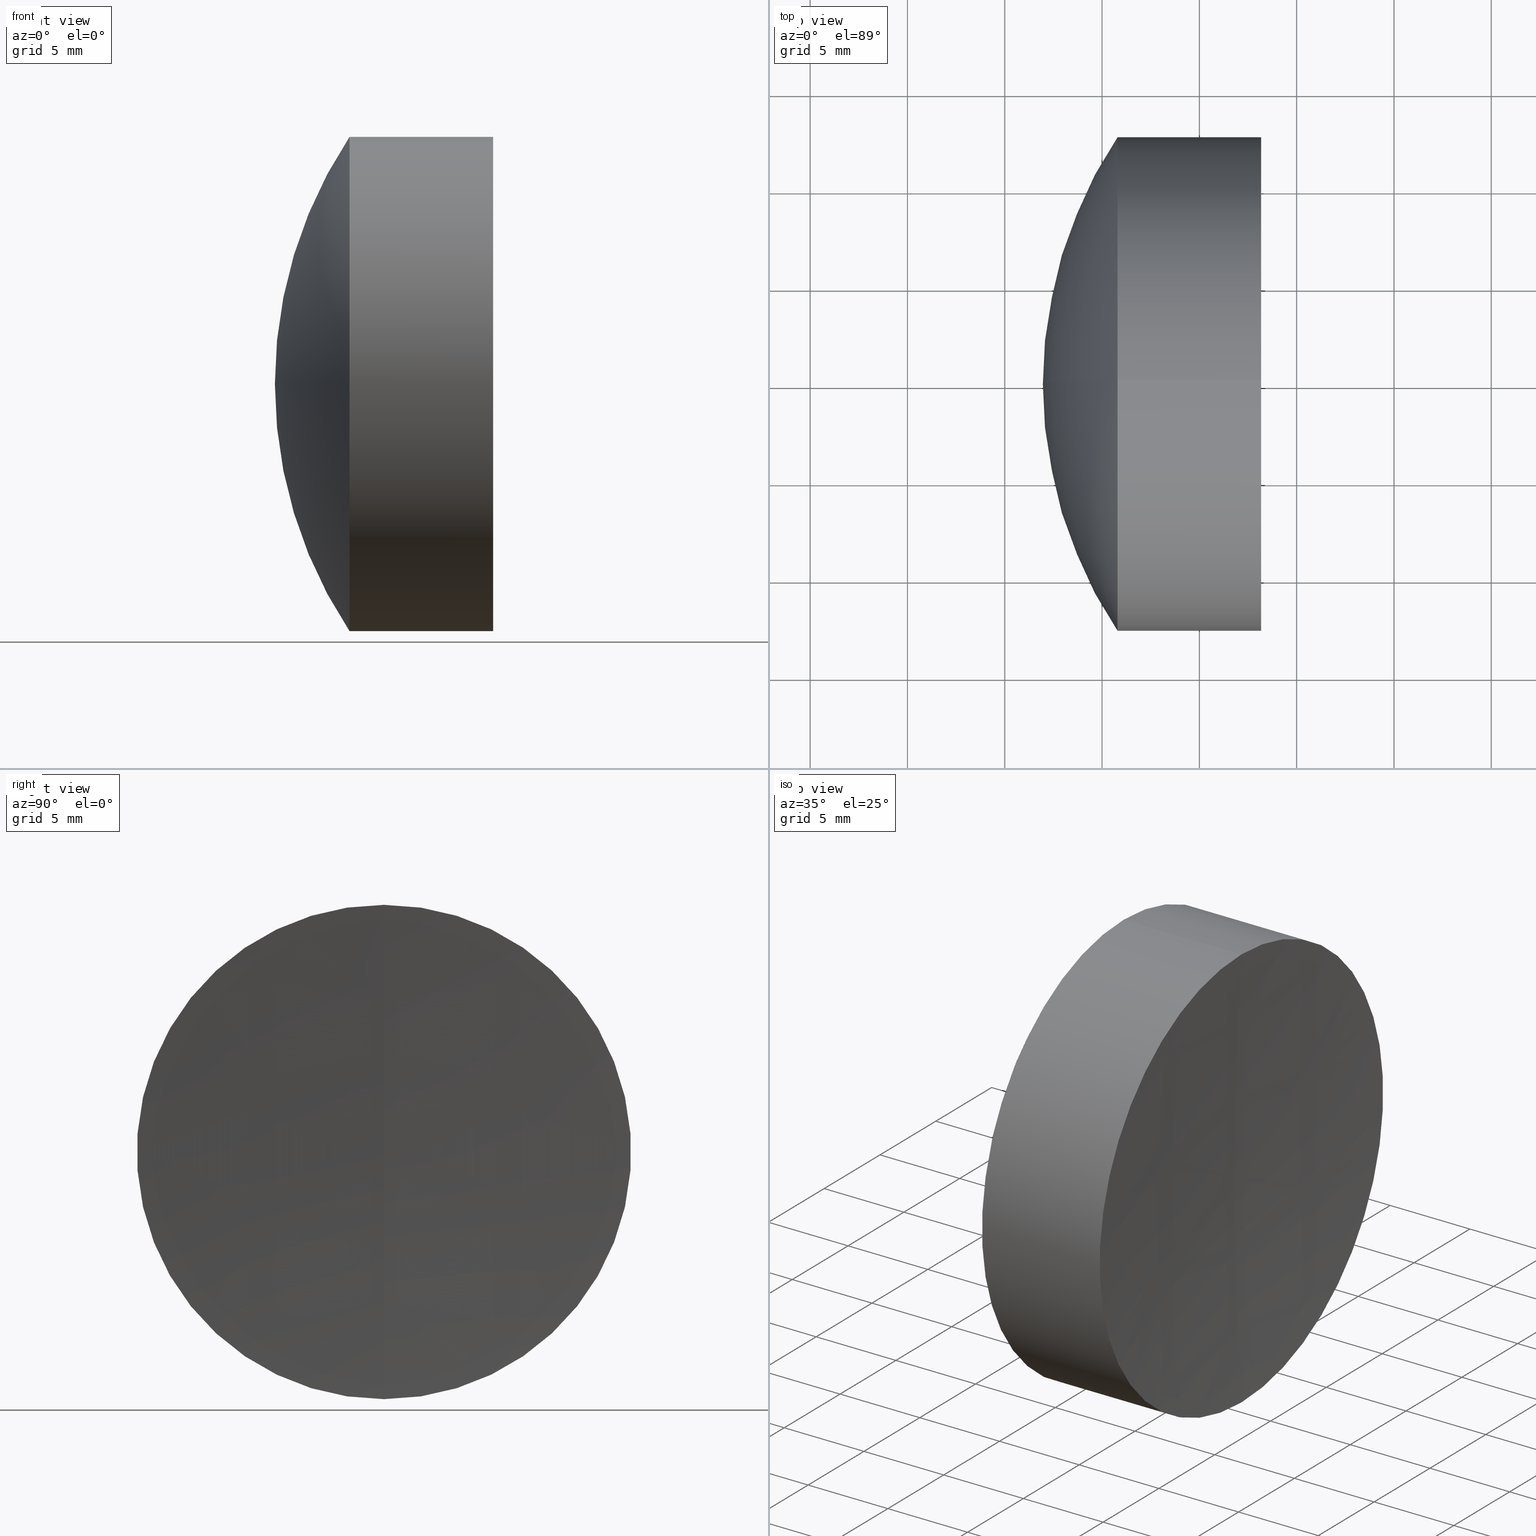
[diagram: canonical four-view strip — front | top / right | iso, engineering-drawing reading convention]
A machine part, canonical four-view strip (front | top / right | iso — engineering-drawing reading convention). The complete STEP part file that produces these views, byte-faithful:
ISO-10303-21;
HEADER;
FILE_DESCRIPTION (( 'STEP AP214' ),
    '1' );
FILE_NAME ('145162.STEP',
    '2019-06-07T05:07:14',
    ( 'user' ),
    ( '΢���й�' ),
    'SwSTEP 2.0',
    'SolidWorks 2016',
    '' );
FILE_SCHEMA (( 'AUTOMOTIVE_DESIGN' ));
ENDSEC;

DATA;
#1 = DIRECTION ( 'NONE',  ( -1.000000000000000000, -0.0000000000000000000, -0.0000000000000000000 ) ) ;
#2 = CARTESIAN_POINT ( 'NONE',  ( 15.07937379721097100, 0.0000000000000000000, -4.336808689942052200E-016 ) ) ;
#3 = COLOUR_RGB ( '',1.000000000000000000, 1.000000000000000000, 1.000000000000000000 ) ;
#4 = ORIENTED_EDGE ( 'NONE', *, *, #281, .T. ) ;
#5 = DIRECTION ( 'NONE',  ( 0.0000000000000000000, 0.0000000000000000000, 1.000000000000000000 ) ) ;
#6 = SURFACE_STYLE_USAGE ( .BOTH. , #226 ) ;
#7 = VERTEX_POINT ( 'NONE', #99 ) ;
#8 = ORIENTED_EDGE ( 'NONE', *, *, #149, .T. ) ;
#9 = DIRECTION ( 'NONE',  ( -1.000000000000000000, -0.0000000000000000000, -0.0000000000000000000 ) ) ;
#10 =( NAMED_UNIT ( * ) PLANE_ANGLE_UNIT ( ) SI_UNIT ( $, .RADIAN. ) );
#11 = DIRECTION ( 'NONE',  ( -1.000000000000000000, -0.0000000000000000000, -0.0000000000000000000 ) ) ;
#12 = ORIENTED_EDGE ( 'NONE', *, *, #134, .F. ) ;
#13 = DIRECTION ( 'NONE',  ( 0.0000000000000000000, 0.0000000000000000000, 1.000000000000000000 ) ) ;
#14 = DIRECTION ( 'NONE',  ( 0.0000000000000000000, 0.0000000000000000000, 1.000000000000000000 ) ) ;
#15 = ADVANCED_FACE ( 'NONE', ( #192 ), #193, .T. ) ;
#16 = AXIS2_PLACEMENT_3D ( 'NONE', #311, #140, #153 ) ;
#17 = SURFACE_STYLE_FILL_AREA ( #300 ) ;
#18 = FACE_OUTER_BOUND ( 'NONE', #39, .T. ) ;
#19 = EDGE_LOOP ( 'NONE', ( #157, #124, #223, #60 ) ) ;
#20 = VERTEX_POINT ( 'NONE', #103 ) ;
#21 = CARTESIAN_POINT ( 'NONE',  ( 37.62897246326266300, 0.0000000000000000000, 0.0000000000000000000 ) ) ;
#22 = STYLED_ITEM ( 'NONE', ( #29 ), #212 ) ;
#23 = PRODUCT_DEFINITION_SHAPE ( 'NONE', 'NONE',  #276 ) ;
#24 = AXIS2_PLACEMENT_3D ( 'NONE', #122, #200, #177 ) ;
#25 = SPHERICAL_SURFACE ( 'NONE', #165, 194.5400000000001100 ) ;
#26 = EDGE_LOOP ( 'NONE', ( #261, #270, #344 ) ) ;
#27 = EDGE_CURVE ( 'NONE', #20, #182, #229, .T. ) ;
#28 = UNCERTAINTY_MEASURE_WITH_UNIT (LENGTH_MEASURE( 1.000000000000000100E-005 ), #58, 'distance_accuracy_value', 'NONE');
#29 = PRESENTATION_STYLE_ASSIGNMENT (( #6 ) ) ;
#30 = CARTESIAN_POINT ( 'NONE',  ( 35.79561500476388900, 0.0000000000000000000, 0.0000000000000000000 ) ) ;
#31 = EDGE_CURVE ( 'NONE', #20, #146, #97, .T. ) ;
#32 = AXIS2_PLACEMENT_3D ( 'NONE', #144, #132, #152 ) ;
#33 = CARTESIAN_POINT ( 'NONE',  ( 54.89937379721099800, 0.0000000000000000000, -4.336808689942017700E-016 ) ) ;
#34 = CARTESIAN_POINT ( 'NONE',  ( 15.07937379721097100, 0.0000000000000000000, -4.336808689942052200E-016 ) ) ;
#35 = VERTEX_POINT ( 'NONE', #197 ) ;
#36 = FILL_AREA_STYLE_COLOUR ( '', #109 ) ;
#37 = DIRECTION ( 'NONE',  ( -0.0000000000000000000, -1.000000000000000000, -0.0000000000000000000 ) ) ;
#38 = FACE_OUTER_BOUND ( 'NONE', #19, .T. ) ;
#39 = EDGE_LOOP ( 'NONE', ( #130, #42, #69 ) ) ;
#40 = EDGE_CURVE ( 'NONE', #175, #168, #222, .T. ) ;
#41 = ORIENTED_EDGE ( 'NONE', *, *, #128, .T. ) ;
#42 = ORIENTED_EDGE ( 'NONE', *, *, #40, .T. ) ;
#43 = PRODUCT_CONTEXT ( 'NONE', #302, 'mechanical' ) ;
#44 = CARTESIAN_POINT ( 'NONE',  ( 35.79561500476388900, 0.0000000000000000000, 12.69999999999999600 ) ) ;
#45 = AXIS2_PLACEMENT_3D ( 'NONE', #259, #185, #327 ) ;
#46 = CARTESIAN_POINT ( 'NONE',  ( 15.07937379721097100, 0.0000000000000000000, -4.336808689942052200E-016 ) ) ;
#47 = CARTESIAN_POINT ( 'NONE',  ( 31.95937379721099000, 0.0000000000000000000, 9.709890096278126700E-016 ) ) ;
#48 = EDGE_CURVE ( 'NONE', #182, #7, #51, .T. ) ;
#49 =( NAMED_UNIT ( * ) PLANE_ANGLE_UNIT ( ) SI_UNIT ( $, .RADIAN. ) );
#50 = ADVANCED_FACE ( 'NONE', ( #56 ), #307, .T. ) ;
#51 = LINE ( 'NONE', #248, #313 ) ;
#52 = CARTESIAN_POINT ( 'NONE',  ( 15.07937379721097100, 0.0000000000000000000, -4.336808689942052200E-016 ) ) ;
#53 = DIRECTION ( 'NONE',  ( 0.0000000000000000000, 1.000000000000000000, 0.0000000000000000000 ) ) ;
#54 = AXIS2_PLACEMENT_3D ( 'NONE', #21, #121, #78 ) ;
#55 = ORIENTED_EDGE ( 'NONE', *, *, #336, .T. ) ;
#56 = FACE_OUTER_BOUND ( 'NONE', #189, .T. ) ;
#57 = EDGE_CURVE ( 'NONE', #255, #176, #266, .T. ) ;
#58 =( LENGTH_UNIT ( ) NAMED_UNIT ( * ) SI_UNIT ( .MILLI., .METRE. ) );
#59 = STYLED_ITEM ( 'NONE', ( #220 ), #316 ) ;
#60 = ORIENTED_EDGE ( 'NONE', *, *, #31, .F. ) ;
#61 = CARTESIAN_POINT ( 'NONE',  ( 237.2993737972109900, 0.0000000000000000000, 0.0000000000000000000 ) ) ;
#62 = CARTESIAN_POINT ( 'NONE',  ( 15.07937379721097100, 0.0000000000000000000, -4.336808689942052200E-016 ) ) ;
#63 = AXIS2_PLACEMENT_3D ( 'NONE', #273, #337, #234 ) ;
#64 = SURFACE_STYLE_USAGE ( .BOTH. , #119 ) ;
#65 = AXIS2_PLACEMENT_3D ( 'NONE', #314, #298, #235 ) ;
#66 = DIRECTION ( 'NONE',  ( 0.0000000000000000000, 0.0000000000000000000, -1.000000000000000000 ) ) ;
#67 = SPHERICAL_SURFACE ( 'NONE', #221, 194.5400000000001100 ) ;
#68 = VERTEX_POINT ( 'NONE', #47 ) ;
#69 = ORIENTED_EDGE ( 'NONE', *, *, #158, .T. ) ;
#70 = CARTESIAN_POINT ( 'NONE',  ( 43.17435840764294100, -1.555301434917158400E-015, 12.70000000000016300 ) ) ;
#71 =( NAMED_UNIT ( * ) SI_UNIT ( $, .STERADIAN. ) SOLID_ANGLE_UNIT ( ) );
#72 = EDGE_CURVE ( 'NONE', #35, #182, #139, .T. ) ;
#73 = CARTESIAN_POINT ( 'NONE',  ( 37.62897246326266300, 0.0000000000000000000, 12.69999999999999600 ) ) ;
#74 = CARTESIAN_POINT ( 'NONE',  ( 0.0000000000000000000, 0.0000000000000000000, 0.0000000000000000000 ) ) ;
#75 = CARTESIAN_POINT ( 'NONE',  ( 42.75937379721089800, 0.0000000000000000000, -1.191213941530631000E-014 ) ) ;
#76 = FACE_OUTER_BOUND ( 'NONE', #183, .T. ) ;
#77 = VERTEX_POINT ( 'NONE', #70 ) ;
#78 = DIRECTION ( 'NONE',  ( 0.0000000000000000000, 0.0000000000000000000, 1.000000000000000000 ) ) ;
#79 = AXIS2_PLACEMENT_3D ( 'NONE', #34, #196, #325 ) ;
#80 = EDGE_CURVE ( 'NONE', #146, #68, #320, .T. ) ;
#81 = CARTESIAN_POINT ( 'NONE',  ( 37.62897246326265600, 0.0000000000000000000, 0.0000000000000000000 ) ) ;
#82 = SURFACE_STYLE_FILL_AREA ( #125 ) ;
#83 = AXIS2_PLACEMENT_3D ( 'NONE', #81, #117, #148 ) ;
#84 = DIRECTION ( 'NONE',  ( -1.000000000000000000, -0.0000000000000000000, -0.0000000000000000000 ) ) ;
#85 = CYLINDRICAL_SURFACE ( 'NONE', #32, 12.69999999999999600 ) ;
#86 = CIRCLE ( 'NONE', #343, 25.87999999999999500 ) ;
#87 = DIRECTION ( 'NONE',  ( 0.0000000000000000000, -1.000000000000000000, -1.224646799147353200E-016 ) ) ;
#88 = ORIENTED_EDGE ( 'NONE', *, *, #142, .F. ) ;
#89 = ORIENTED_EDGE ( 'NONE', *, *, #142, .T. ) ;
#90 = CARTESIAN_POINT ( 'NONE',  ( 237.2993737972109900, 0.0000000000000000000, 0.0000000000000000000 ) ) ;
#91 = SURFACE_SIDE_STYLE ('',( #145 ) ) ;
#92 = EDGE_CURVE ( 'NONE', #146, #7, #306, .T. ) ;
#93 = ORIENTED_EDGE ( 'NONE', *, *, #336, .F. ) ;
#94 = EDGE_LOOP ( 'NONE', ( #333, #268, #187 ) ) ;
#95 = DIRECTION ( 'NONE',  ( 0.0000000000000000000, 0.0000000000000000000, 1.000000000000000000 ) ) ;
#96 = ORIENTED_EDGE ( 'NONE', *, *, #342, .T. ) ;
#97 = LINE ( 'NONE', #105, #110 ) ;
#98 = APPLICATION_CONTEXT ( 'automotive_design' ) ;
#99 = CARTESIAN_POINT ( 'NONE',  ( 35.79561500476388900, 1.555301434917138000E-015, -12.69999999999999600 ) ) ;
#100 = FACE_OUTER_BOUND ( 'NONE', #329, .T. ) ;
#101 = ORIENTED_EDGE ( 'NONE', *, *, #299, .F. ) ;
#102 = AXIS2_PLACEMENT_3D ( 'NONE', #46, #141, #284 ) ;
#103 = CARTESIAN_POINT ( 'NONE',  ( 37.62897246326265600, 0.0000000000000000000, 12.69999999999999900 ) ) ;
#104 = CIRCLE ( 'NONE', #324, 12.69999999999999900 ) ;
#105 = CARTESIAN_POINT ( 'NONE',  ( -0.8160621761658039000, 0.0000000000000000000, 12.69999999999999900 ) ) ;
#106 = CYLINDRICAL_SURFACE ( 'NONE', #265, 12.69999999999999600 ) ;
#107 = ORIENTED_EDGE ( 'NONE', *, *, #164, .F. ) ;
#108 = VERTEX_POINT ( 'NONE', #75 ) ;
#109 = COLOUR_RGB ( '',1.000000000000000000, 1.000000000000000000, 1.000000000000000000 ) ;
#110 = VECTOR ( 'NONE', #346, 1000.000000000000000 ) ;
#111 = ORIENTED_EDGE ( 'NONE', *, *, #92, .T. ) ;
#112 = FILL_AREA_STYLE_COLOUR ( '', #241 ) ;
#113 = AXIS2_PLACEMENT_3D ( 'NONE', #308, #53, #258 ) ;
#114 =( LENGTH_UNIT ( ) NAMED_UNIT ( * ) SI_UNIT ( .MILLI., .METRE. ) );
#115 = FACE_OUTER_BOUND ( 'NONE', #26, .T. ) ;
#116 = ORIENTED_EDGE ( 'NONE', *, *, #57, .F. ) ;
#117 = DIRECTION ( 'NONE',  ( -1.000000000000000000, -0.0000000000000000000, -0.0000000000000000000 ) ) ;
#118 = PRESENTATION_LAYER_ASSIGNMENT (  '', '', ( #209 ) ) ;
#119 = SURFACE_SIDE_STYLE ('',( #17 ) ) ;
#120 = DIRECTION ( 'NONE',  ( 0.0000000000000000000, 0.0000000000000000000, 1.000000000000000000 ) ) ;
#121 = DIRECTION ( 'NONE',  ( -1.000000000000000000, -0.0000000000000000000, -0.0000000000000000000 ) ) ;
#122 = CARTESIAN_POINT ( 'NONE',  ( 15.07937379721097100, 0.0000000000000000000, -4.336808689942052200E-016 ) ) ;
#123 = VECTOR ( 'NONE', #249, 1000.000000000000000 ) ;
#124 = ORIENTED_EDGE ( 'NONE', *, *, #48, .T. ) ;
#125 = FILL_AREA_STYLE ('',( #263 ) ) ;
#126 = APPLICATION_PROTOCOL_DEFINITION ( 'draft international standard', 'automotive_design', 1998, #302 ) ;
#127 = DIRECTION ( 'NONE',  ( 0.0000000000000000000, 0.0000000000000000000, 1.000000000000000000 ) ) ;
#128 = EDGE_CURVE ( 'NONE', #175, #176, #318, .T. ) ;
#129 = ADVANCED_FACE ( 'NONE', ( #295 ), #173, .T. ) ;
#130 = ORIENTED_EDGE ( 'NONE', *, *, #128, .F. ) ;
#131 = DIRECTION ( 'NONE',  ( 0.0000000000000000000, 1.224646799147353200E-016, -1.000000000000000000 ) ) ;
#132 = DIRECTION ( 'NONE',  ( -1.000000000000000000, -0.0000000000000000000, -0.0000000000000000000 ) ) ;
#133 = ORIENTED_EDGE ( 'NONE', *, *, #184, .T. ) ;
#134 = EDGE_CURVE ( 'NONE', #176, #168, #305, .T. ) ;
#135 = UNCERTAINTY_MEASURE_WITH_UNIT (LENGTH_MEASURE( 1.000000000000000100E-005 ), #114, 'distance_accuracy_value', 'NONE');
#136 = AXIS2_PLACEMENT_3D ( 'NONE', #181, #228, #163 ) ;
#137 = AXIS2_PLACEMENT_3D ( 'NONE', #277, #9, #321 ) ;
#138 = FACE_OUTER_BOUND ( 'NONE', #256, .T. ) ;
#139 = CIRCLE ( 'NONE', #292, 25.87999999999999500 ) ;
#140 = DIRECTION ( 'NONE',  ( 0.0000000000000000000, -1.000000000000000000, 0.0000000000000000000 ) ) ;
#141 = DIRECTION ( 'NONE',  ( 0.0000000000000000000, 1.000000000000000000, 0.0000000000000000000 ) ) ;
#142 = EDGE_CURVE ( 'NONE', #7, #68, #211, .T. ) ;
#143 = AXIS2_PLACEMENT_3D ( 'NONE', #150, #198, #13 ) ;
#144 = CARTESIAN_POINT ( 'NONE',  ( -0.5519199926577972300, 0.0000000000000000000, 0.0000000000000000000 ) ) ;
#145 = SURFACE_STYLE_FILL_AREA ( #254 ) ;
#146 = VERTEX_POINT ( 'NONE', #44 ) ;
#147 = ORIENTED_EDGE ( 'NONE', *, *, #48, .F. ) ;
#148 = DIRECTION ( 'NONE',  ( 0.0000000000000000000, 0.0000000000000000000, 1.000000000000000000 ) ) ;
#149 = EDGE_CURVE ( 'NONE', #77, #255, #237, .T. ) ;
#150 = CARTESIAN_POINT ( 'NONE',  ( 37.62897246326266300, 0.0000000000000000000, 0.0000000000000000000 ) ) ;
#151 = ORIENTED_EDGE ( 'NONE', *, *, #31, .T. ) ;
#152 = DIRECTION ( 'NONE',  ( 0.0000000000000000000, 0.0000000000000000000, 1.000000000000000000 ) ) ;
#153 = DIRECTION ( 'NONE',  ( 0.0000000000000000000, 0.0000000000000000000, -1.000000000000000000 ) ) ;
#154 = AXIS2_PLACEMENT_3D ( 'NONE', #52, #315, #286 ) ;
#155 = DIRECTION ( 'NONE',  ( 0.0000000000000000000, 0.0000000000000000000, 1.000000000000000000 ) ) ;
#156 = VECTOR ( 'NONE', #301, 1000.000000000000000 ) ;
#157 = ORIENTED_EDGE ( 'NONE', *, *, #27, .T. ) ;
#158 = EDGE_CURVE ( 'NONE', #168, #176, #232, .T. ) ;
#159 = ADVANCED_FACE ( 'NONE', ( #76 ), #67, .F. ) ;
#160 = ADVANCED_FACE ( 'NONE', ( #38 ), #345, .T. ) ;
#161 = FACE_OUTER_BOUND ( 'NONE', #294, .T. ) ;
#162 = ORIENTED_EDGE ( 'NONE', *, *, #40, .F. ) ;
#163 = DIRECTION ( 'NONE',  ( 0.0000000000000000000, -1.224646799147353200E-016, 1.000000000000000000 ) ) ;
#164 = EDGE_CURVE ( 'NONE', #255, #108, #278, .T. ) ;
#165 = AXIS2_PLACEMENT_3D ( 'NONE', #230, #246, #214 ) ;
#166 = SPHERICAL_SURFACE ( 'NONE', #79, 25.87999999999999500 ) ;
#167 = AXIS2_PLACEMENT_3D ( 'NONE', #239, #280, #14 ) ;
#168 = VERTEX_POINT ( 'NONE', #73 ) ;
#169 = CLOSED_SHELL ( 'NONE', ( #267, #159, #238, #206, #291, #340 ) ) ;
#170 =( NAMED_UNIT ( * ) SI_UNIT ( $, .STERADIAN. ) SOLID_ANGLE_UNIT ( ) );
#171 = DIRECTION ( 'NONE',  ( -0.0000000000000000000, 1.000000000000000000, 1.224646799147353200E-016 ) ) ;
#172 = MANIFOLD_SOLID_BREP ( '��ת2', #169 ) ;
#173 = SPHERICAL_SURFACE ( 'NONE', #113, 25.87999999999999500 ) ;
#174 =( LENGTH_UNIT ( ) NAMED_UNIT ( * ) SI_UNIT ( .MILLI., .METRE. ) );
#175 = VERTEX_POINT ( 'NONE', #304 ) ;
#176 = VERTEX_POINT ( 'NONE', #201 ) ;
#177 = DIRECTION ( 'NONE',  ( 0.0000000000000000000, 0.0000000000000000000, 1.000000000000000000 ) ) ;
#178 = CARTESIAN_POINT ( 'NONE',  ( 43.17435840764293400, 0.0000000000000000000, 0.0000000000000000000 ) ) ;
#179 = CARTESIAN_POINT ( 'NONE',  ( -0.5519199926577972300, 0.0000000000000000000, 12.69999999999999600 ) ) ;
#180 = CIRCLE ( 'NONE', #83, 12.69999999999999900 ) ;
#181 = CARTESIAN_POINT ( 'NONE',  ( 54.89937379721099800, 0.0000000000000000000, -4.336808689942017700E-016 ) ) ;
#182 = VERTEX_POINT ( 'NONE', #279 ) ;
#183 = EDGE_LOOP ( 'NONE', ( #243, #253, #107 ) ) ;
#184 = EDGE_CURVE ( 'NONE', #255, #77, #251, .T. ) ;
#185 = DIRECTION ( 'NONE',  ( -1.000000000000000000, -0.0000000000000000000, -0.0000000000000000000 ) ) ;
#186 = UNCERTAINTY_MEASURE_WITH_UNIT (LENGTH_MEASURE( 1.000000000000000100E-005 ), #174, 'distance_accuracy_value', 'NONE');
#187 = ORIENTED_EDGE ( 'NONE', *, *, #164, .T. ) ;
#188 = CYLINDRICAL_SURFACE ( 'NONE', #63, 12.69999999999999900 ) ;
#189 = EDGE_LOOP ( 'NONE', ( #111, #89, #242 ) ) ;
#190 =( GEOMETRIC_REPRESENTATION_CONTEXT ( 3 ) GLOBAL_UNCERTAINTY_ASSIGNED_CONTEXT ( ( #186 ) ) GLOBAL_UNIT_ASSIGNED_CONTEXT ( ( #174, #225, #170 ) ) REPRESENTATION_CONTEXT ( 'NONE', 'WORKASPACE' ) );
#191 = UNCERTAINTY_MEASURE_WITH_UNIT (LENGTH_MEASURE( 1.000000000000000100E-005 ), #330, 'distance_accuracy_value', 'NONE');
#192 = FACE_OUTER_BOUND ( 'NONE', #199, .T. ) ;
#193 = SPHERICAL_SURFACE ( 'NONE', #210, 22.94000000000000500 ) ;
#194 = DIRECTION ( 'NONE',  ( 0.0000000000000000000, 0.0000000000000000000, 1.000000000000000000 ) ) ;
#195 = CLOSED_SHELL ( 'NONE', ( #283, #160, #50, #15, #204, #129 ) ) ;
#196 = DIRECTION ( 'NONE',  ( 0.0000000000000000000, 1.000000000000000000, 0.0000000000000000000 ) ) ;
#197 = CARTESIAN_POINT ( 'NONE',  ( 40.95937379721097200, 0.0000000000000000000, 1.151012089102469500E-015 ) ) ;
#198 = DIRECTION ( 'NONE',  ( -1.000000000000000000, -0.0000000000000000000, -0.0000000000000000000 ) ) ;
#199 = EDGE_LOOP ( 'NONE', ( #88, #55, #233 ) ) ;
#200 = DIRECTION ( 'NONE',  ( 0.0000000000000000000, 1.000000000000000000, 0.0000000000000000000 ) ) ;
#201 = CARTESIAN_POINT ( 'NONE',  ( 37.62897246326266300, 1.555301434917138000E-015, -12.69999999999999600 ) ) ;
#202 = DIRECTION ( 'NONE',  ( 0.0000000000000000000, -1.000000000000000000, 0.0000000000000000000 ) ) ;
#203 = PRESENTATION_LAYER_ASSIGNMENT (  '', '', ( #59 ) ) ;
#204 = ADVANCED_FACE ( 'NONE', ( #138 ), #188, .T. ) ;
#205 = AXIS2_PLACEMENT_3D ( 'NONE', #90, #87, #131 ) ;
#206 = ADVANCED_FACE ( 'NONE', ( #18 ), #297, .F. ) ;
#207 = SHAPE_DEFINITION_REPRESENTATION ( #23, #212 ) ;
#208 = EDGE_LOOP ( 'NONE', ( #245, #96, #101 ) ) ;
#209 = STYLED_ITEM ( 'NONE', ( #236 ), #172 ) ;
#210 = AXIS2_PLACEMENT_3D ( 'NONE', #33, #341, #95 ) ;
#211 = CIRCLE ( 'NONE', #136, 22.94000000000000500 ) ;
#212 = ADVANCED_BREP_SHAPE_REPRESENTATION ( '145162', ( #316, #172, #293 ), #296 ) ;
#213 = ORIENTED_EDGE ( 'NONE', *, *, #281, .F. ) ;
#214 = DIRECTION ( 'NONE',  ( 0.0000000000000000000, 0.0000000000000000000, -1.000000000000000000 ) ) ;
#215 =( NAMED_UNIT ( * ) SI_UNIT ( $, .STERADIAN. ) SOLID_ANGLE_UNIT ( ) );
#216 = ORIENTED_EDGE ( 'NONE', *, *, #299, .T. ) ;
#217 = AXIS2_PLACEMENT_3D ( 'NONE', #61, #309, #127 ) ;
#218 = DIRECTION ( 'NONE',  ( -1.000000000000000000, -0.0000000000000000000, -0.0000000000000000000 ) ) ;
#219 = LINE ( 'NONE', #179, #156 ) ;
#220 = PRESENTATION_STYLE_ASSIGNMENT (( #247 ) ) ;
#221 = AXIS2_PLACEMENT_3D ( 'NONE', #328, #37, #334 ) ;
#222 = CIRCLE ( 'NONE', #310, 25.87999999999999900 ) ;
#223 = ORIENTED_EDGE ( 'NONE', *, *, #92, .F. ) ;
#224 = DIRECTION ( 'NONE',  ( 0.0000000000000000000, 0.0000000000000000000, 1.000000000000000000 ) ) ;
#225 =( NAMED_UNIT ( * ) PLANE_ANGLE_UNIT ( ) SI_UNIT ( $, .RADIAN. ) );
#226 = SURFACE_SIDE_STYLE ('',( #82 ) ) ;
#227 = FACE_OUTER_BOUND ( 'NONE', #303, .T. ) ;
#228 = DIRECTION ( 'NONE',  ( -0.0000000000000000000, 1.000000000000000000, 1.224646799147353200E-016 ) ) ;
#229 = CIRCLE ( 'NONE', #167, 12.69999999999999900 ) ;
#230 = CARTESIAN_POINT ( 'NONE',  ( 237.2993737972109900, 0.0000000000000000000, 0.0000000000000000000 ) ) ;
#231 = MECHANICAL_DESIGN_GEOMETRIC_PRESENTATION_REPRESENTATION (  '', ( #22 ), #272 ) ;
#232 = CIRCLE ( 'NONE', #143, 12.69999999999999600 ) ;
#233 = ORIENTED_EDGE ( 'NONE', *, *, #80, .T. ) ;
#234 = DIRECTION ( 'NONE',  ( 0.0000000000000000000, 0.0000000000000000000, 1.000000000000000000 ) ) ;
#235 = DIRECTION ( 'NONE',  ( 0.0000000000000000000, 0.0000000000000000000, 1.000000000000000000 ) ) ;
#236 = PRESENTATION_STYLE_ASSIGNMENT (( #64 ) ) ;
#237 = CIRCLE ( 'NONE', #269, 12.69999999999999600 ) ;
#238 = ADVANCED_FACE ( 'NONE', ( #227 ), #326, .F. ) ;
#239 = CARTESIAN_POINT ( 'NONE',  ( 37.62897246326265600, 0.0000000000000000000, 0.0000000000000000000 ) ) ;
#240 = AXIS2_PLACEMENT_3D ( 'NONE', #322, #338, #194 ) ;
#241 = COLOUR_RGB ( '',1.000000000000000000, 1.000000000000000000, 1.000000000000000000 ) ;
#242 = ORIENTED_EDGE ( 'NONE', *, *, #80, .F. ) ;
#243 = ORIENTED_EDGE ( 'NONE', *, *, #149, .F. ) ;
#244 =( GEOMETRIC_REPRESENTATION_CONTEXT ( 3 ) GLOBAL_UNCERTAINTY_ASSIGNED_CONTEXT ( ( #191 ) ) GLOBAL_UNIT_ASSIGNED_CONTEXT ( ( #330, #49, #215 ) ) REPRESENTATION_CONTEXT ( 'NONE', 'WORKASPACE' ) );
#245 = ORIENTED_EDGE ( 'NONE', *, *, #72, .F. ) ;
#246 = DIRECTION ( 'NONE',  ( -0.0000000000000000000, -1.000000000000000000, -0.0000000000000000000 ) ) ;
#247 = SURFACE_STYLE_USAGE ( .BOTH. , #91 ) ;
#248 = CARTESIAN_POINT ( 'NONE',  ( -0.8160621761658039000, 1.555301434917138400E-015, -12.69999999999999900 ) ) ;
#249 = DIRECTION ( 'NONE',  ( -1.000000000000000000, -0.0000000000000000000, -0.0000000000000000000 ) ) ;
#250 = MECHANICAL_DESIGN_GEOMETRIC_PRESENTATION_REPRESENTATION (  '', ( #209 ), #244 ) ;
#251 = CIRCLE ( 'NONE', #45, 12.69999999999999600 ) ;
#252 = APPLICATION_PROTOCOL_DEFINITION ( 'draft international standard', 'automotive_design', 1998, #98 ) ;
#253 = ORIENTED_EDGE ( 'NONE', *, *, #323, .T. ) ;
#254 = FILL_AREA_STYLE ('',( #112 ) ) ;
#255 = VERTEX_POINT ( 'NONE', #335 ) ;
#256 = EDGE_LOOP ( 'NONE', ( #147, #216, #151, #93 ) ) ;
#257 = DIRECTION ( 'NONE',  ( 0.0000000000000000000, 0.0000000000000000000, -1.000000000000000000 ) ) ;
#258 = DIRECTION ( 'NONE',  ( 0.0000000000000000000, 0.0000000000000000000, 1.000000000000000000 ) ) ;
#259 = CARTESIAN_POINT ( 'NONE',  ( 43.17435840764293400, 0.0000000000000000000, 0.0000000000000000000 ) ) ;
#260 = PRODUCT_DEFINITION_CONTEXT ( 'detailed design', #98, 'design' ) ;
#261 = ORIENTED_EDGE ( 'NONE', *, *, #342, .F. ) ;
#262 = PRESENTATION_LAYER_ASSIGNMENT (  '', '', ( #22 ) ) ;
#263 = FILL_AREA_STYLE_COLOUR ( '', #3 ) ;
#264 = CARTESIAN_POINT ( 'NONE',  ( -0.5519199926577972300, 1.555301434917138000E-015, -12.69999999999999600 ) ) ;
#265 = AXIS2_PLACEMENT_3D ( 'NONE', #347, #1, #155 ) ;
#266 = LINE ( 'NONE', #264, #123 ) ;
#267 = ADVANCED_FACE ( 'NONE', ( #161 ), #106, .T. ) ;
#268 = ORIENTED_EDGE ( 'NONE', *, *, #184, .F. ) ;
#269 = AXIS2_PLACEMENT_3D ( 'NONE', #178, #11, #5 ) ;
#270 = ORIENTED_EDGE ( 'NONE', *, *, #72, .T. ) ;
#271 = DIRECTION ( 'NONE',  ( 0.0000000000000000000, -1.224646799147353200E-016, 1.000000000000000000 ) ) ;
#272 =( GEOMETRIC_REPRESENTATION_CONTEXT ( 3 ) GLOBAL_UNCERTAINTY_ASSIGNED_CONTEXT ( ( #28 ) ) GLOBAL_UNIT_ASSIGNED_CONTEXT ( ( #58, #289, #282 ) ) REPRESENTATION_CONTEXT ( 'NONE', 'WORKASPACE' ) );
#273 = CARTESIAN_POINT ( 'NONE',  ( -0.8160621761658039000, 0.0000000000000000000, 0.0000000000000000000 ) ) ;
#274 = DIRECTION ( 'NONE',  ( 0.0000000000000000000, -1.000000000000000000, 0.0000000000000000000 ) ) ;
#275 = CIRCLE ( 'NONE', #205, 194.5400000000001100 ) ;
#276 = PRODUCT_DEFINITION ( 'δ֪', '', #317, #260 ) ;
#277 = CARTESIAN_POINT ( 'NONE',  ( -0.8160621761658039000, 0.0000000000000000000, 0.0000000000000000000 ) ) ;
#278 = CIRCLE ( 'NONE', #217, 194.5400000000001100 ) ;
#279 = CARTESIAN_POINT ( 'NONE',  ( 37.62897246326265600, 1.555301434917138400E-015, -12.69999999999999900 ) ) ;
#280 = DIRECTION ( 'NONE',  ( -1.000000000000000000, -0.0000000000000000000, -0.0000000000000000000 ) ) ;
#281 = EDGE_CURVE ( 'NONE', #77, #168, #219, .T. ) ;
#282 =( NAMED_UNIT ( * ) SI_UNIT ( $, .STERADIAN. ) SOLID_ANGLE_UNIT ( ) );
#283 = ADVANCED_FACE ( 'NONE', ( #115 ), #166, .T. ) ;
#284 = DIRECTION ( 'NONE',  ( 0.0000000000000000000, 0.0000000000000000000, 1.000000000000000000 ) ) ;
#285 = PRODUCT ( '145162', '145162', '', ( #43 ) ) ;
#286 = DIRECTION ( 'NONE',  ( 0.0000000000000000000, -1.224646799147353200E-016, 1.000000000000000000 ) ) ;
#287 = MECHANICAL_DESIGN_GEOMETRIC_PRESENTATION_REPRESENTATION (  '', ( #59 ), #190 ) ;
#288 = FACE_OUTER_BOUND ( 'NONE', #94, .T. ) ;
#289 =( NAMED_UNIT ( * ) PLANE_ANGLE_UNIT ( ) SI_UNIT ( $, .RADIAN. ) );
#290 = CARTESIAN_POINT ( 'NONE',  ( 15.07937379721097100, 0.0000000000000000000, -4.336808689942052200E-016 ) ) ;
#291 = ADVANCED_FACE ( 'NONE', ( #288 ), #25, .F. ) ;
#292 = AXIS2_PLACEMENT_3D ( 'NONE', #290, #171, #271 ) ;
#293 = AXIS2_PLACEMENT_3D ( 'NONE', #74, #120, #332 ) ;
#294 = EDGE_LOOP ( 'NONE', ( #8, #339, #319, #213 ) ) ;
#295 = FACE_OUTER_BOUND ( 'NONE', #208, .T. ) ;
#296 =( GEOMETRIC_REPRESENTATION_CONTEXT ( 3 ) GLOBAL_UNCERTAINTY_ASSIGNED_CONTEXT ( ( #135 ) ) GLOBAL_UNIT_ASSIGNED_CONTEXT ( ( #114, #10, #71 ) ) REPRESENTATION_CONTEXT ( 'NONE', 'WORKASPACE' ) );
#297 = SPHERICAL_SURFACE ( 'NONE', #24, 25.87999999999999900 ) ;
#298 = DIRECTION ( 'NONE',  ( 0.0000000000000000000, 1.000000000000000000, 0.0000000000000000000 ) ) ;
#299 = EDGE_CURVE ( 'NONE', #182, #20, #180, .T. ) ;
#300 = FILL_AREA_STYLE ('',( #36 ) ) ;
#301 = DIRECTION ( 'NONE',  ( -1.000000000000000000, -0.0000000000000000000, -0.0000000000000000000 ) ) ;
#302 = APPLICATION_CONTEXT ( 'automotive_design' ) ;
#303 = EDGE_LOOP ( 'NONE', ( #162, #41, #312 ) ) ;
#304 = CARTESIAN_POINT ( 'NONE',  ( 40.95937379721097200, 0.0000000000000000000, 1.151012089102469700E-015 ) ) ;
#305 = CIRCLE ( 'NONE', #54, 12.69999999999999600 ) ;
#306 = CIRCLE ( 'NONE', #240, 12.69999999999999900 ) ;
#307 = SPHERICAL_SURFACE ( 'NONE', #65, 22.94000000000000500 ) ;
#308 = CARTESIAN_POINT ( 'NONE',  ( 15.07937379721097100, 0.0000000000000000000, -4.336808689942052200E-016 ) ) ;
#309 = DIRECTION ( 'NONE',  ( 0.0000000000000000000, 1.000000000000000000, -0.0000000000000000000 ) ) ;
#310 = AXIS2_PLACEMENT_3D ( 'NONE', #62, #274, #66 ) ;
#311 = CARTESIAN_POINT ( 'NONE',  ( 54.89937379721099800, 0.0000000000000000000, -4.336808689942017700E-016 ) ) ;
#312 = ORIENTED_EDGE ( 'NONE', *, *, #134, .T. ) ;
#313 = VECTOR ( 'NONE', #84, 1000.000000000000000 ) ;
#314 = CARTESIAN_POINT ( 'NONE',  ( 54.89937379721099800, 0.0000000000000000000, -4.336808689942017700E-016 ) ) ;
#315 = DIRECTION ( 'NONE',  ( -0.0000000000000000000, 1.000000000000000000, 1.224646799147353200E-016 ) ) ;
#316 = MANIFOLD_SOLID_BREP ( '��ת1', #195 ) ;
#317 = PRODUCT_DEFINITION_FORMATION_WITH_SPECIFIED_SOURCE ( '�κ�', '', #285, .NOT_KNOWN. ) ;
#318 = CIRCLE ( 'NONE', #154, 25.87999999999999900 ) ;
#319 = ORIENTED_EDGE ( 'NONE', *, *, #158, .F. ) ;
#320 = CIRCLE ( 'NONE', #16, 22.94000000000000500 ) ;
#321 = DIRECTION ( 'NONE',  ( 0.0000000000000000000, 0.0000000000000000000, 1.000000000000000000 ) ) ;
#322 = CARTESIAN_POINT ( 'NONE',  ( 35.79561500476388900, 0.0000000000000000000, 0.0000000000000000000 ) ) ;
#323 = EDGE_CURVE ( 'NONE', #77, #108, #275, .T. ) ;
#324 = AXIS2_PLACEMENT_3D ( 'NONE', #30, #218, #224 ) ;
#325 = DIRECTION ( 'NONE',  ( 0.0000000000000000000, 0.0000000000000000000, 1.000000000000000000 ) ) ;
#326 = SPHERICAL_SURFACE ( 'NONE', #102, 25.87999999999999900 ) ;
#327 = DIRECTION ( 'NONE',  ( 0.0000000000000000000, 0.0000000000000000000, 1.000000000000000000 ) ) ;
#328 = CARTESIAN_POINT ( 'NONE',  ( 237.2993737972109900, 0.0000000000000000000, 0.0000000000000000000 ) ) ;
#329 = EDGE_LOOP ( 'NONE', ( #116, #133, #4, #12 ) ) ;
#330 =( LENGTH_UNIT ( ) NAMED_UNIT ( * ) SI_UNIT ( .MILLI., .METRE. ) );
#331 = PRODUCT_RELATED_PRODUCT_CATEGORY ( 'part', '', ( #285 ) ) ;
#332 = DIRECTION ( 'NONE',  ( 1.000000000000000000, 0.0000000000000000000, 0.0000000000000000000 ) ) ;
#333 = ORIENTED_EDGE ( 'NONE', *, *, #323, .F. ) ;
#334 = DIRECTION ( 'NONE',  ( 0.0000000000000000000, 0.0000000000000000000, -1.000000000000000000 ) ) ;
#335 = CARTESIAN_POINT ( 'NONE',  ( 43.17435840764294100, 0.0000000000000000000, -12.70000000000016300 ) ) ;
#336 = EDGE_CURVE ( 'NONE', #7, #146, #104, .T. ) ;
#337 = DIRECTION ( 'NONE',  ( -1.000000000000000000, -0.0000000000000000000, -0.0000000000000000000 ) ) ;
#338 = DIRECTION ( 'NONE',  ( -1.000000000000000000, -0.0000000000000000000, -0.0000000000000000000 ) ) ;
#339 = ORIENTED_EDGE ( 'NONE', *, *, #57, .T. ) ;
#340 = ADVANCED_FACE ( 'NONE', ( #100 ), #85, .T. ) ;
#341 = DIRECTION ( 'NONE',  ( 0.0000000000000000000, 1.000000000000000000, 0.0000000000000000000 ) ) ;
#342 = EDGE_CURVE ( 'NONE', #35, #20, #86, .T. ) ;
#343 = AXIS2_PLACEMENT_3D ( 'NONE', #2, #202, #257 ) ;
#344 = ORIENTED_EDGE ( 'NONE', *, *, #27, .F. ) ;
#345 = CYLINDRICAL_SURFACE ( 'NONE', #137, 12.69999999999999900 ) ;
#346 = DIRECTION ( 'NONE',  ( -1.000000000000000000, -0.0000000000000000000, -0.0000000000000000000 ) ) ;
#347 = CARTESIAN_POINT ( 'NONE',  ( -0.5519199926577972300, 0.0000000000000000000, 0.0000000000000000000 ) ) ;
ENDSEC;
END-ISO-10303-21;
